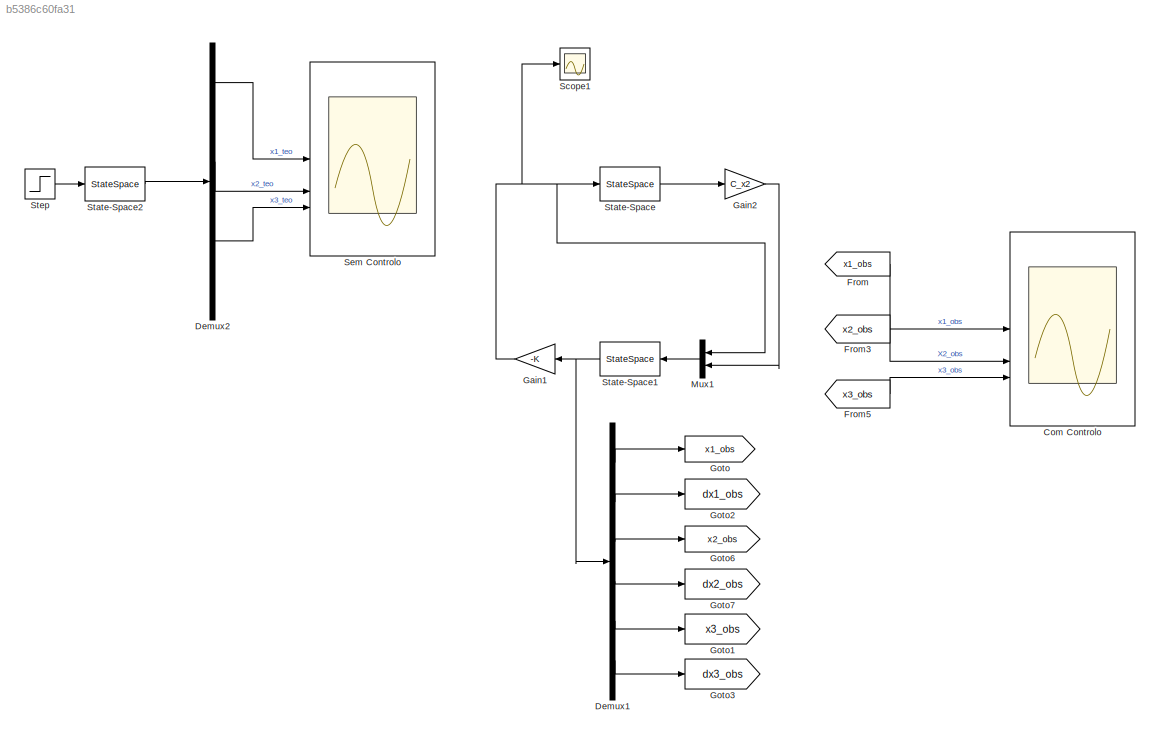
MODEL slx_b5386c60fa31
KIND model
CONFIG AbsTol = auto
CONFIG EnableMultiTasking = off
CONFIG FixedStep = auto
CONFIG MaxStep = auto
CONFIG MinStep = auto
CONFIG RelTol = 1e-3
CONFIG SampleTimeConstraint = Unconstrained
CONFIG SolverName = VariableStepAuto
CONFIG StartTime = 0.0
CONFIG StopTime = 30
BLOCK [Scope] Com Controlo
  Floating = off
  NumInputPorts = 3
  ScopeSpecificationString = Simulink.scopes.TimeScopeBlockCfg('CurrentConfiguration', extmgr.ConfigurationSet(extmgr.Configuration('Core','General UI',true),extmgr.Configuration('Core','Source UI',true),extmgr.Configuration('Sources','WiredSimulink',true,'DataLogging',true,'DataLoggingVariableName','Data3','DataLoggingSaveFormat','StructureWithTime'),extmgr.Configuration('Visuals','Time Domain',true,'SerializedDisplays',{str...<+3772ch>
BLOCK [Demux] Demux1
  Outputs = 6
BLOCK [Demux] Demux2
  Outputs = 6
BLOCK [From] From
  GotoTag = x1_obs
BLOCK [From] From3
  GotoTag = x2_obs
BLOCK [From] From5
  GotoTag = x3_obs
BLOCK [Gain] Gain1
  Gain = -K
  Multiplication = Matrix(K*u) (u vector)
  NameLocation = top
BLOCK [Gain] Gain2
  Gain = C_x2
  Multiplication = Matrix(K*u)
BLOCK [Goto] Goto
  GotoTag = x1_obs
BLOCK [Goto] Goto1
  GotoTag = x3_obs
BLOCK [Goto] Goto2
  GotoTag = dx1_obs
BLOCK [Goto] Goto3
  GotoTag = dx3_obs
BLOCK [Goto] Goto6
  GotoTag = x2_obs
BLOCK [Goto] Goto7
  GotoTag = dx2_obs
BLOCK [Mux] Mux1
  DisplayOption = bar
  Inputs = 2
  NameLocation = top
BLOCK [Scope] Scope1
  Floating = off
  NumInputPorts = 1
  ScopeSpecificationString = Simulink.scopes.TimeScopeBlockCfg('CurrentConfiguration', extmgr.ConfigurationSet(extmgr.Configuration('Core','General UI',true),extmgr.Configuration('Core','Source UI',true),extmgr.Configuration('Sources','WiredSimulink',true,'DataLoggingVariableName','ScopeData1'),extmgr.Configuration('Visuals','Time Domain',true,'SerializedDisplays',{struct('MinYLimReal','-683.02407','MaxYLimReal','1888.55342',...<+1471ch>
BLOCK [Scope] Sem Controlo
  Floating = off
  NumInputPorts = 3
  ScopeSpecificationString = Simulink.scopes.TimeScopeBlockCfg('CurrentConfiguration', extmgr.ConfigurationSet(extmgr.Configuration('Core','General UI',true),extmgr.Configuration('Core','Source UI',true),extmgr.Configuration('Sources','WiredSimulink',true,'DataLogging',true,'DataLoggingVariableName','Data3s','DataLoggingSaveFormat','StructureWithTime'),extmgr.Configuration('Visuals','Time Domain',true,'SerializedDisplays',{st...<+3770ch>
BLOCK [StateSpace] State-Space
  A = A
  B = B
  C = C
  D = D
  InitialCondition = x0
BLOCK [StateSpace] State-Space1
  A = Ao
  B = Bo
  C = Co
  D = Do
  InitialCondition = 0
  NameLocation = top
  ParameterTunability = Optimized
BLOCK [StateSpace] State-Space2
  A = A
  B = B
  C = C
  D = D
  InitialCondition = x0
BLOCK [Step] Step
  SampleTime = 0
LINE Demux1:1 -> Goto:1
LINE Demux1:2 -> Goto2:1
LINE Demux1:3 -> Goto6:1
LINE Demux1:4 -> Goto7:1
LINE Demux1:5 -> Goto1:1
LINE Demux1:6 -> Goto3:1
LINE Demux2:1 -> Sem Controlo:1
LINE Demux2:3 -> Sem Controlo:2
LINE Demux2:5 -> Sem Controlo:3
LINE From3:1 -> Com Controlo:2
LINE From5:1 -> Com Controlo:3
LINE From:1 -> Com Controlo:1
NET Gain1:1 -> Mux1:1, Scope1:1, State-Space:1
LINE Gain2:1 -> Mux1:2
LINE Mux1:1 -> State-Space1:1
NET State-Space1:1 -> Demux1:1, Gain1:1
LINE State-Space2:1 -> Demux2:1
LINE State-Space:1 -> Gain2:1
LINE Step:1 -> State-Space2:1
note: NET lines group one-source signal fan-out (src -> all destinations, sorted); 1:1 wires keep LINE
